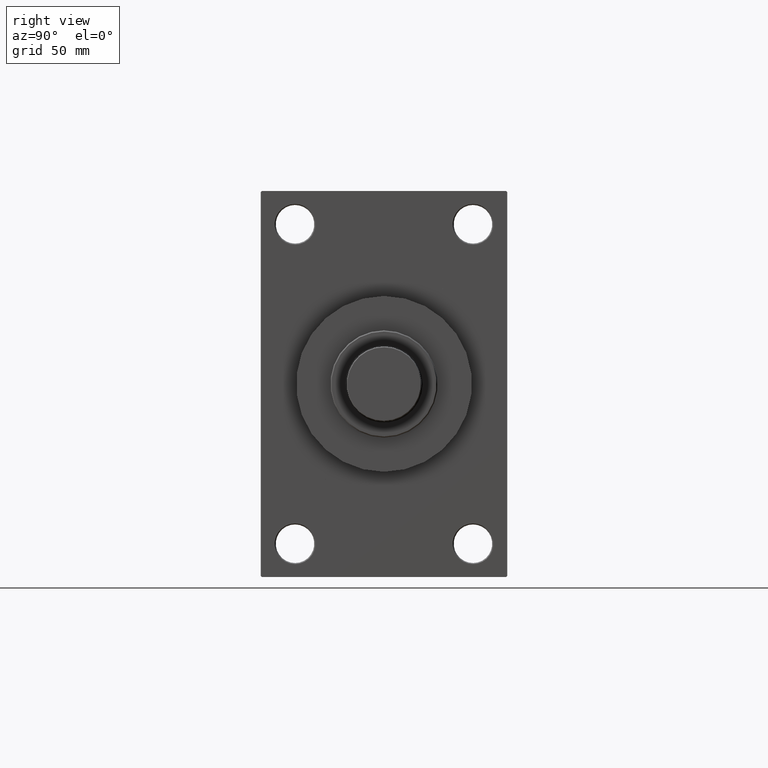
[diagram: clean part render]
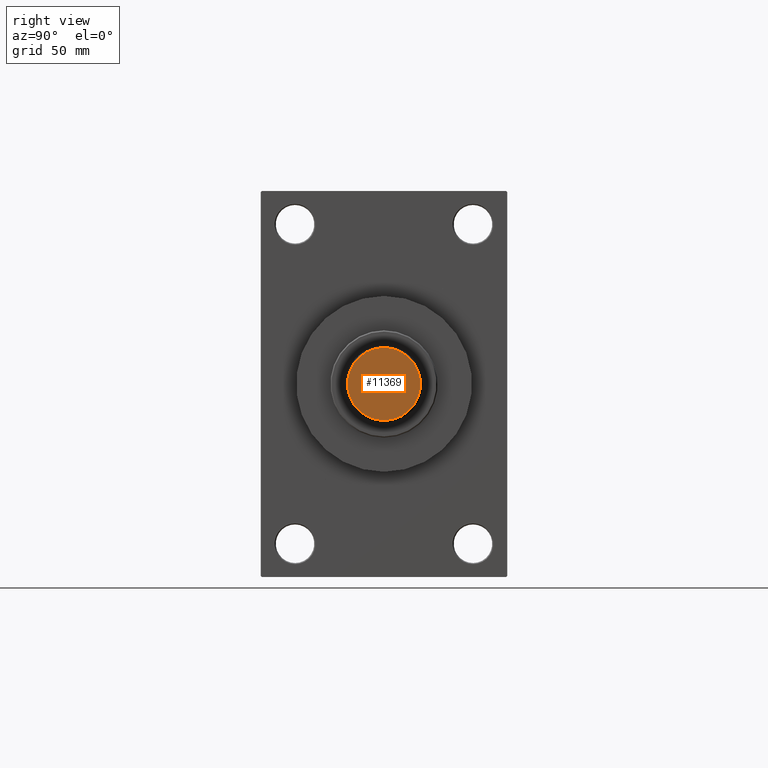
[diagram: same view with one face highlighted and labeled with its STEP entity id]
A machine part, right view. The second image highlights one B-rep face of the part: STEP entity #11369.
In plain terms, the highlighted planar face has unit normal (1, 0, 0).
Its self-contained STEP definition (entity closure, byte-faithful):
#292 = EDGE_CURVE ( 'NONE', #14588, #5624, #37792, .T. ) ;
#313 = DIRECTION ( 'NONE',  ( 1.000000000000000000, 0.000000000000000000, 0.000000000000000000 ) ) ;
#1538 = AXIS2_PLACEMENT_3D ( 'NONE', #26055, #44342, #10981 ) ;
#5624 = VERTEX_POINT ( 'NONE', #26092 ) ;
#10981 = DIRECTION ( 'NONE',  ( 1.000000000000000000, 0.000000000000000000, -0.000000000000000000 ) ) ;
#11369 = ADVANCED_FACE ( 'NONE', ( #32897 ), #29478, .T. ) ;
#11503 = CARTESIAN_POINT ( 'NONE',  ( 0.000000000000000000, 0.000000000000000000, 0.000000000000000000 ) ) ;
#11838 = CIRCLE ( 'NONE', #25821, 17.00000000000000355 ) ;
#14588 = VERTEX_POINT ( 'NONE', #15879 ) ;
#15140 = DIRECTION ( 'NONE',  ( 0.000000000000000000, 0.000000000000000000, 1.000000000000000000 ) ) ;
#15879 = CARTESIAN_POINT ( 'NONE',  ( -17.00000000000000355, 2.112515728529184856E-15, 0.000000000000000000 ) ) ;
#17732 = EDGE_CURVE ( 'NONE', #5624, #14588, #11838, .T. ) ;
#25821 = AXIS2_PLACEMENT_3D ( 'NONE', #28781, #42698, #31972 ) ;
#26055 = CARTESIAN_POINT ( 'NONE',  ( 0.000000000000000000, 0.000000000000000000, 0.000000000000000000 ) ) ;
#26092 = CARTESIAN_POINT ( 'NONE',  ( 17.00000000000000355, 0.000000000000000000, 0.000000000000000000 ) ) ;
#26855 = ORIENTED_EDGE ( 'NONE', *, *, #292, .T. ) ;
#28436 = AXIS2_PLACEMENT_3D ( 'NONE', #11503, #15140, #313 ) ;
#28781 = CARTESIAN_POINT ( 'NONE',  ( 0.000000000000000000, 0.000000000000000000, 0.000000000000000000 ) ) ;
#29478 = PLANE ( 'NONE',  #1538 ) ;
#31972 = DIRECTION ( 'NONE',  ( 1.000000000000000000, 0.000000000000000000, 0.000000000000000000 ) ) ;
#31974 = ORIENTED_EDGE ( 'NONE', *, *, #17732, .T. ) ;
#32897 = FACE_OUTER_BOUND ( 'NONE', #45033, .T. ) ;
#37792 = CIRCLE ( 'NONE', #28436, 17.00000000000000355 ) ;
#42698 = DIRECTION ( 'NONE',  ( 0.000000000000000000, 0.000000000000000000, 1.000000000000000000 ) ) ;
#44342 = DIRECTION ( 'NONE',  ( 0.000000000000000000, 0.000000000000000000, 1.000000000000000000 ) ) ;
#45033 = EDGE_LOOP ( 'NONE', ( #31974, #26855 ) ) ;